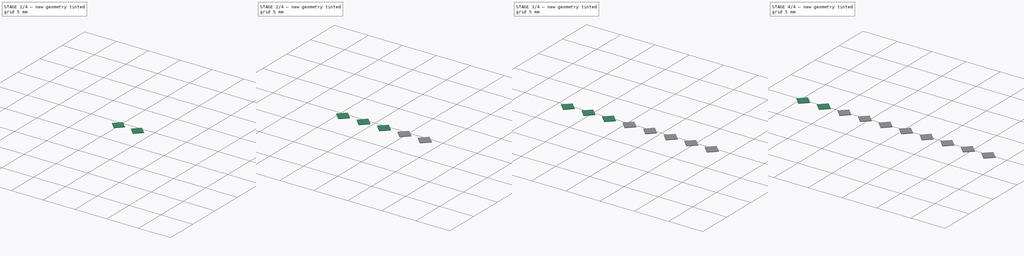
[diagram: build sequence overview — one tinted view per stage of 4, left to right]
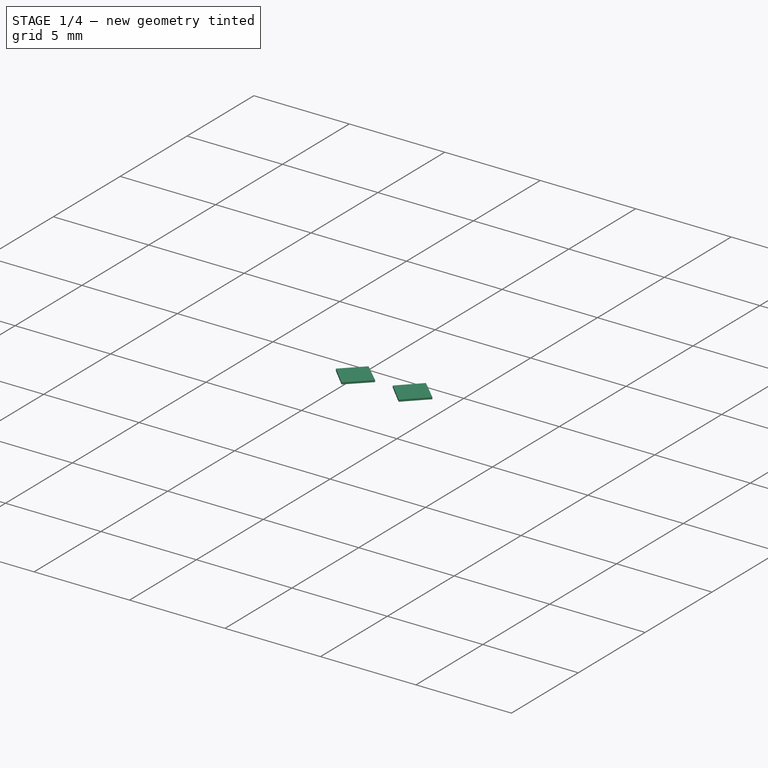
[diagram: stage 1 of 4 — iso view after this stage's code; geometry added in this stage tinted green]
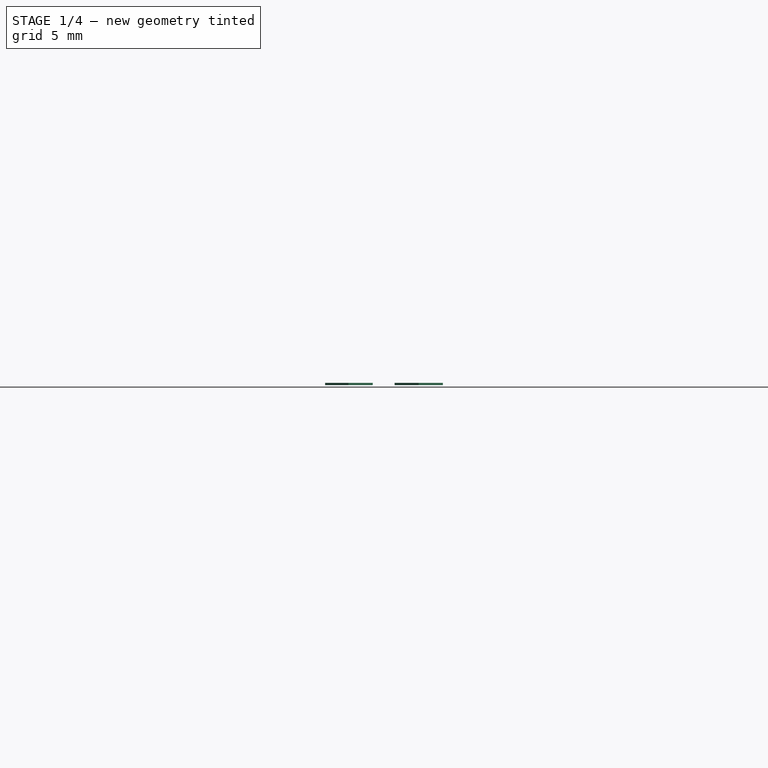
[diagram: stage 1 of 4 — front view after this stage's code; geometry added in this stage tinted green]
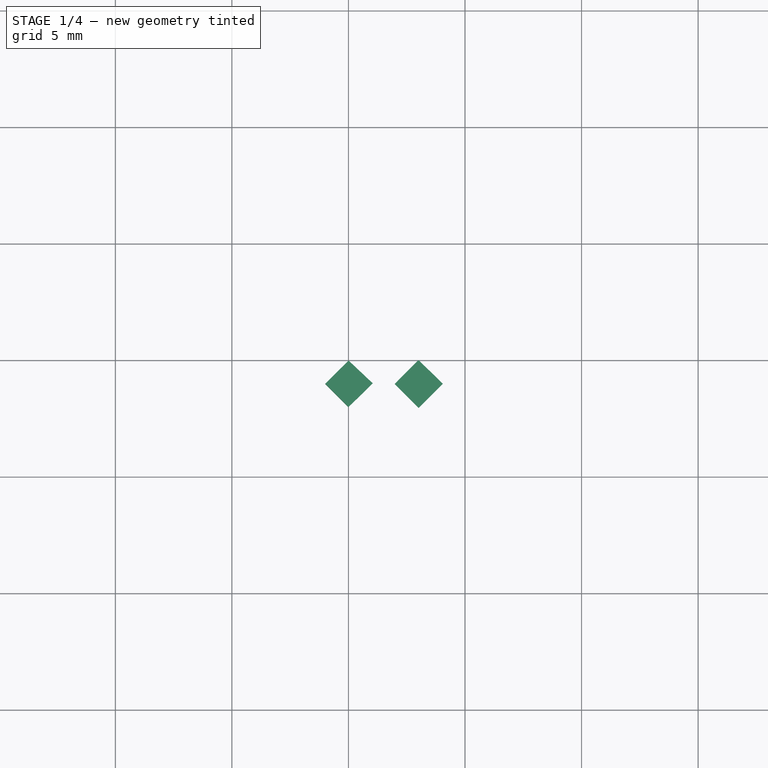
[diagram: stage 1 of 4 — top view after this stage's code; geometry added in this stage tinted green]
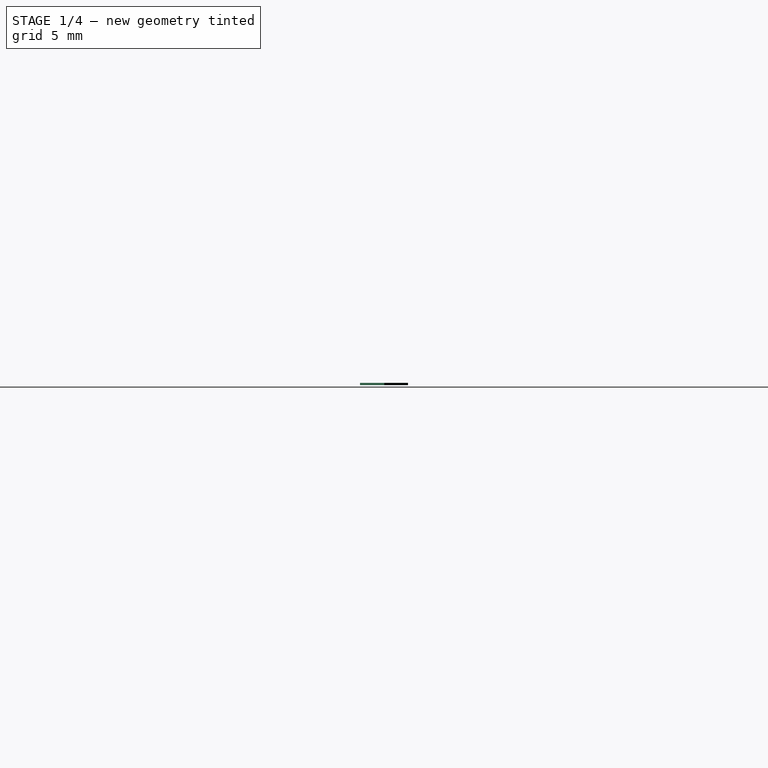
[diagram: stage 1 of 4 — right view after this stage's code; geometry added in this stage tinted green]
FCSTD DOCUMENT  (FreeCAD 0.20R29410 (Git))
Label: detail handle 2
License: All rights reserved
LicenseURL: http://en.wikipedia.org/wiki/All_rights_reserved
objects: Sketcher::SketchObject×10, PartDesign::Pad×10, PartDesign::Body×10
note: 40 computed .brp shape members not serialized (recipe doc carries the construction recipe); baked Part::Feature solids carry a one-line shape summary decoded from their .brp

FEATURE [PartDesign::Body] Body007
  Group = -> [Sketch007,Pad007]
  Origin = -> Origin007
  Tip = -> Pad007
FEATURE [Sketcher::SketchObject] Sketch008
  FullyConstrained = false
  MapMode = 5
  Support = -> [XY_Plane008]
  sketch-geometry (6):
    g0: LineSegment StartX=-51.4984 StartY=0 StartZ=0 EndX=-11.4984 EndY=0 EndZ=0
    g1: LineSegment StartX=-51.4984 StartY=5 StartZ=0 EndX=-51.4984 EndY=0 EndZ=0
    g2: LineSegment StartX=-26.0017 StartY=4.00173 StartZ=0 EndX=-24.9926 EndY=5.00079 EndZ=0
    g3: LineSegment StartX=-24.9926 StartY=5.00079 StartZ=0 EndX=-23.9569 EndY=4.02481 EndZ=0
    g4: LineSegment StartX=-23.9569 StartY=4.02481 StartZ=0 EndX=-25.0027 EndY=3.00267 EndZ=0
    g5: LineSegment StartX=-25.0027 StartY=3.00267 StartZ=0 EndX=-26.0017 EndY=4.00173 EndZ=0
  constraints (10):
    c: PointOnObject(g0,g-1)
    c: PointOnObject(g0,g-1)
    c: DistanceX(g0,g0) = 40
    c: Vertical(g1)
    c: DistanceY(g1,g1) = 5
    c: Coincident(g1,g0)
    c: Coincident(g2,g3)
    c: Coincident(g3,g4)
    c: Coincident(g4,g5)
    c: Coincident(g5,g2)
FEATURE [PartDesign::Pad] Pad008
  Direction = (0,0,1)
  Length = 0.1
  Length2 = 10
  Profile = -> Sketch008
  ReferenceAxis = -> Sketch008 [N_Axis]
  Refine = true
  Type = 0
FEATURE [PartDesign::Body] Body008
  Group = -> [Sketch008,Pad008]
  Origin = -> Origin008
  Tip = -> Pad008
FEATURE [Sketcher::SketchObject] Sketch009
  FullyConstrained = false
  MapMode = 5
  Support = -> [XY_Plane009]
  sketch-geometry (6):
    g0: LineSegment StartX=-51.4984 StartY=0 StartZ=0 EndX=-11.4984 EndY=0 EndZ=0
    g1: LineSegment StartX=-51.4984 StartY=5 StartZ=0 EndX=-51.4984 EndY=0 EndZ=0
    g2: LineSegment StartX=-23.0173 StartY=3.99637 StartZ=0 EndX=-21.998 EndY=5.02571 EndZ=0
    g3: LineSegment StartX=-21.998 StartY=5.02571 StartZ=0 EndX=-20.9485 EndY=4.00646 EndZ=0
    g4: LineSegment StartX=-20.9485 StartY=4.00646 StartZ=0 EndX=-21.9879 EndY=2.96704 EndZ=0
    g5: LineSegment StartX=-21.9879 StartY=2.96704 StartZ=0 EndX=-23.0173 EndY=3.99637 EndZ=0
  constraints (10):
    c: PointOnObject(g0,g-1)
    c: PointOnObject(g0,g-1)
    c: DistanceX(g0,g0) = 40
    c: Vertical(g1)
    c: DistanceY(g1,g1) = 5
    c: Coincident(g1,g0)
    c: Coincident(g2,g3)
    c: Coincident(g3,g4)
    c: Coincident(g4,g5)
    c: Coincident(g5,g2)
FEATURE [PartDesign::Pad] Pad009
  Direction = (0,0,1)
  Length = 0.1
  Length2 = 10
  Profile = -> Sketch009
  ReferenceAxis = -> Sketch009 [N_Axis]
  Refine = true
  Type = 0
FEATURE [PartDesign::Body] Body009
  Group = -> [Sketch009,Pad009]
  Origin = -> Origin009
  Tip = -> Pad009
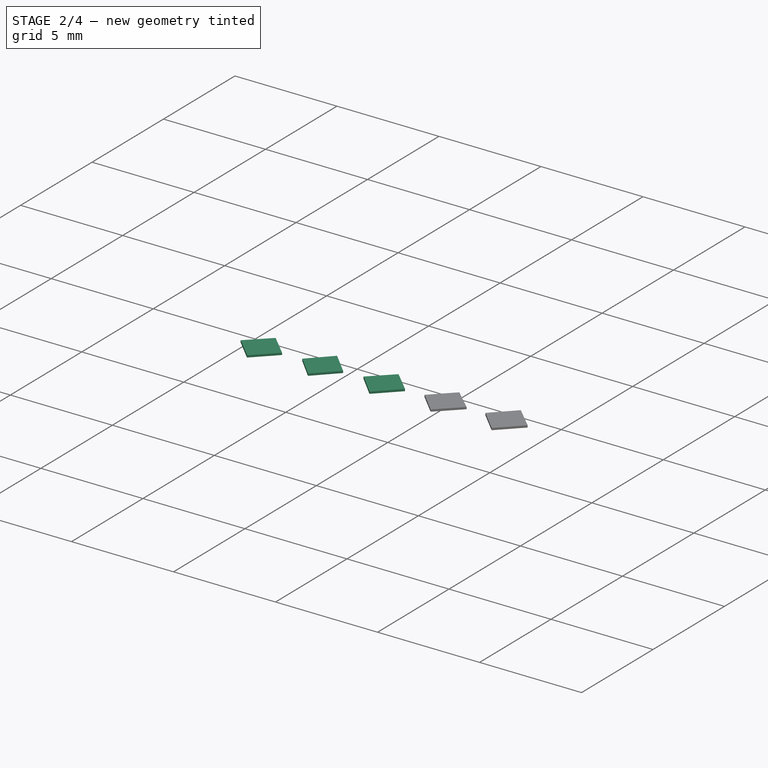
[diagram: stage 2 of 4 — iso view after this stage's code; geometry added in this stage tinted green]
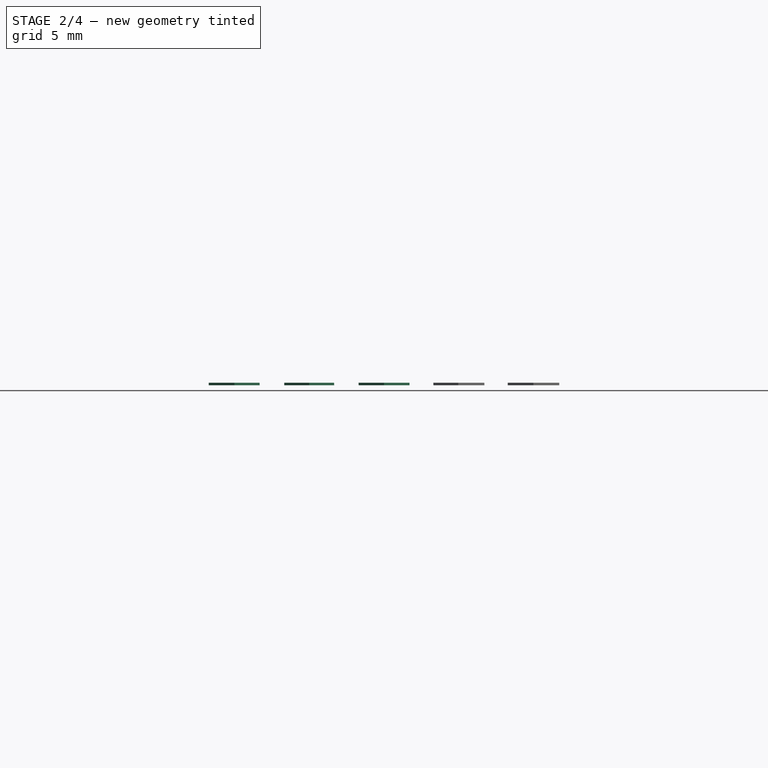
[diagram: stage 2 of 4 — front view after this stage's code; geometry added in this stage tinted green]
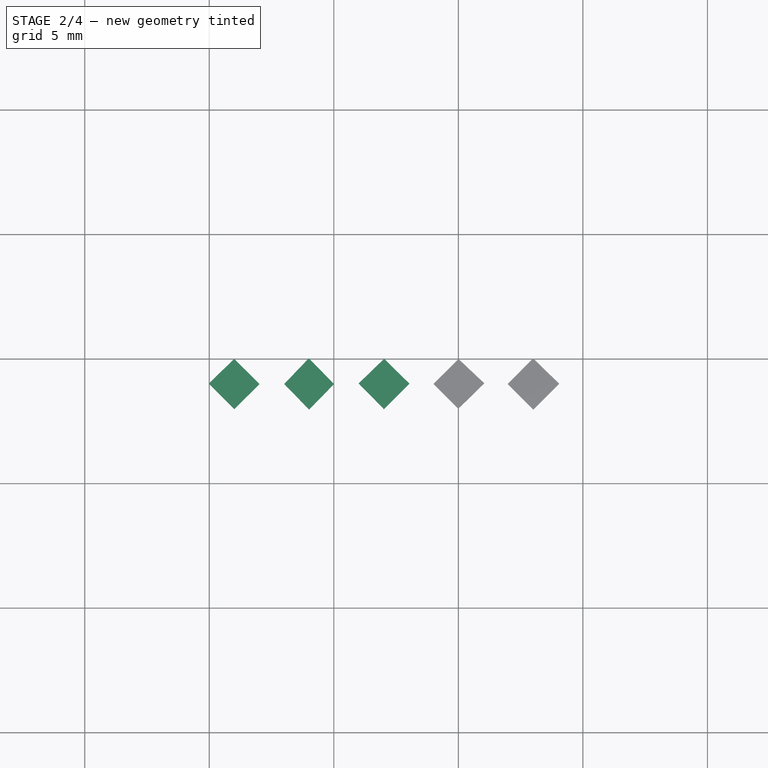
[diagram: stage 2 of 4 — top view after this stage's code; geometry added in this stage tinted green]
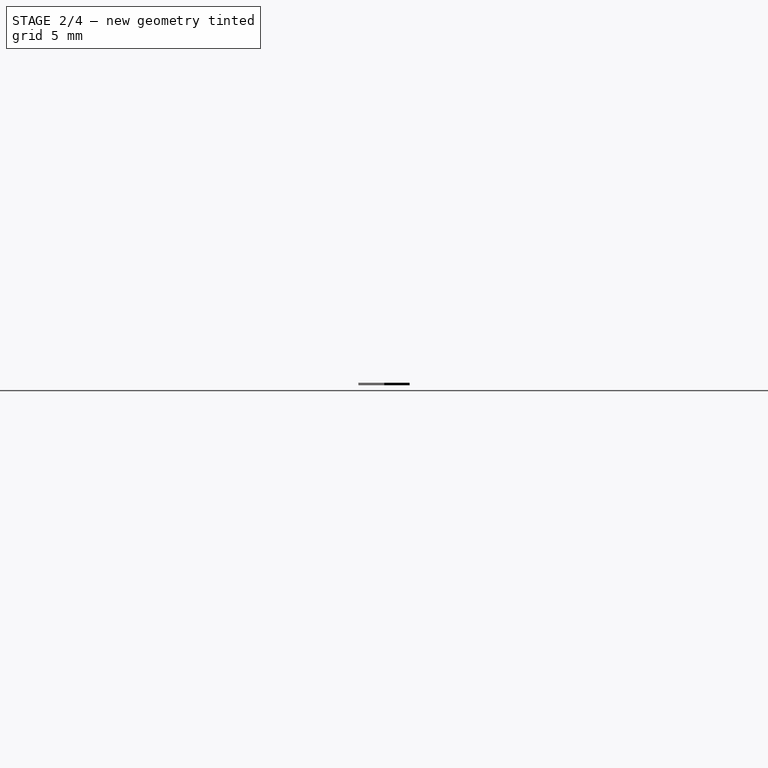
[diagram: stage 2 of 4 — right view after this stage's code; geometry added in this stage tinted green]
FEATURE [PartDesign::Body] Body004
  Group = -> [Sketch004,Pad004]
  Origin = -> Origin004
  Tip = -> Pad004
FEATURE [Sketcher::SketchObject] Sketch005
  FullyConstrained = false
  MapMode = 5
  Support = -> [XY_Plane005]
  sketch-geometry (6):
    g0: LineSegment StartX=-51.4984 StartY=0 StartZ=0 EndX=-11.4984 EndY=0 EndZ=0
    g1: LineSegment StartX=-51.4984 StartY=5 StartZ=0 EndX=-51.4984 EndY=0 EndZ=0
    g2: LineSegment StartX=-35.0215 StartY=4.01571 StartZ=0 EndX=-34.0001 EndY=5.00333 EndZ=0
    g3: LineSegment StartX=-34.0001 StartY=5.00333 StartZ=0 EndX=-32.9786 EndY=3.99542 EndZ=0
    g4: LineSegment StartX=-32.9786 StartY=3.99542 StartZ=0 EndX=-33.9933 EndY=2.9875 EndZ=0
    g5: LineSegment StartX=-33.9933 StartY=2.9875 StartZ=0 EndX=-35.0215 EndY=4.01571 EndZ=0
  constraints (10):
    c: PointOnObject(g0,g-1)
    c: PointOnObject(g0,g-1)
    c: DistanceX(g0,g0) = 40
    c: Vertical(g1)
    c: DistanceY(g1,g1) = 5
    c: Coincident(g1,g0)
    c: Coincident(g2,g3)
    c: Coincident(g3,g4)
    c: Coincident(g4,g5)
    c: Coincident(g5,g2)
FEATURE [PartDesign::Pad] Pad005
  Direction = (0,0,1)
  Length = 0.1
  Length2 = 10
  Profile = -> Sketch005
  ReferenceAxis = -> Sketch005 [N_Axis]
  Refine = true
  Type = 0
FEATURE [PartDesign::Body] Body005
  Group = -> [Sketch005,Pad005]
  Origin = -> Origin005
  Tip = -> Pad005
FEATURE [Sketcher::SketchObject] Sketch006
  FullyConstrained = false
  MapMode = 5
  Support = -> [XY_Plane006]
  sketch-geometry (6):
    g0: LineSegment StartX=-51.4984 StartY=0 StartZ=0 EndX=-11.4984 EndY=0 EndZ=0
    g1: LineSegment StartX=-51.4984 StartY=5 StartZ=0 EndX=-51.4984 EndY=0 EndZ=0
    g2: LineSegment StartX=-31.992 StartY=3.99794 StartZ=0 EndX=-31.0057 EndY=5.02886 EndZ=0
    g3: LineSegment StartX=-31.0057 StartY=5.02886 StartZ=0 EndX=-29.9897 EndY=3.99794 EndZ=0
    g4: LineSegment StartX=-29.9897 StartY=3.99794 StartZ=0 EndX=-30.9908 EndY=2.96972 EndZ=0
    g5: LineSegment StartX=-30.9908 StartY=2.96972 StartZ=0 EndX=-31.992 EndY=3.99794 EndZ=0
  constraints (10):
    c: PointOnObject(g0,g-1)
    c: PointOnObject(g0,g-1)
    c: DistanceX(g0,g0) = 40
    c: Vertical(g1)
    c: DistanceY(g1,g1) = 5
    c: Coincident(g1,g0)
    c: Coincident(g2,g3)
    c: Coincident(g3,g4)
    c: Coincident(g4,g5)
    c: Coincident(g5,g2)
FEATURE [PartDesign::Pad] Pad006
  Direction = (0,0,1)
  Length = 0.1
  Length2 = 10
  Profile = -> Sketch006
  ReferenceAxis = -> Sketch006 [N_Axis]
  Refine = true
  Type = 0
FEATURE [PartDesign::Body] Body006
  Group = -> [Sketch006,Pad006]
  Origin = -> Origin006
  Tip = -> Pad006
FEATURE [Sketcher::SketchObject] Sketch007
  FullyConstrained = false
  MapMode = 5
  Support = -> [XY_Plane007]
  sketch-geometry (6):
    g0: LineSegment StartX=-51.4984 StartY=0 StartZ=0 EndX=-11.4984 EndY=0 EndZ=0
    g1: LineSegment StartX=-51.4984 StartY=5 StartZ=0 EndX=-51.4984 EndY=0 EndZ=0
    g2: LineSegment StartX=-29.0035 StartY=4.01953 StartZ=0 EndX=-27.979 EndY=5.011 EndZ=0
    g3: LineSegment StartX=-27.979 StartY=5.011 StartZ=0 EndX=-26.9627 EndY=4.01127 EndZ=0
    g4: LineSegment StartX=-26.9627 StartY=4.01127 StartZ=0 EndX=-27.9873 EndY=2.98675 EndZ=0
    g5: LineSegment StartX=-27.9873 StartY=2.98675 StartZ=0 EndX=-29.0035 EndY=4.01953 EndZ=0
  constraints (10):
    c: PointOnObject(g0,g-1)
    c: PointOnObject(g0,g-1)
    c: DistanceX(g0,g0) = 40
    c: Vertical(g1)
    c: DistanceY(g1,g1) = 5
    c: Coincident(g1,g0)
    c: Coincident(g2,g3)
    c: Coincident(g3,g4)
    c: Coincident(g4,g5)
    c: Coincident(g5,g2)
FEATURE [PartDesign::Pad] Pad007
  Direction = (0,0,1)
  Length = 0.1
  Length2 = 10
  Profile = -> Sketch007
  ReferenceAxis = -> Sketch007 [N_Axis]
  Refine = true
  Type = 0
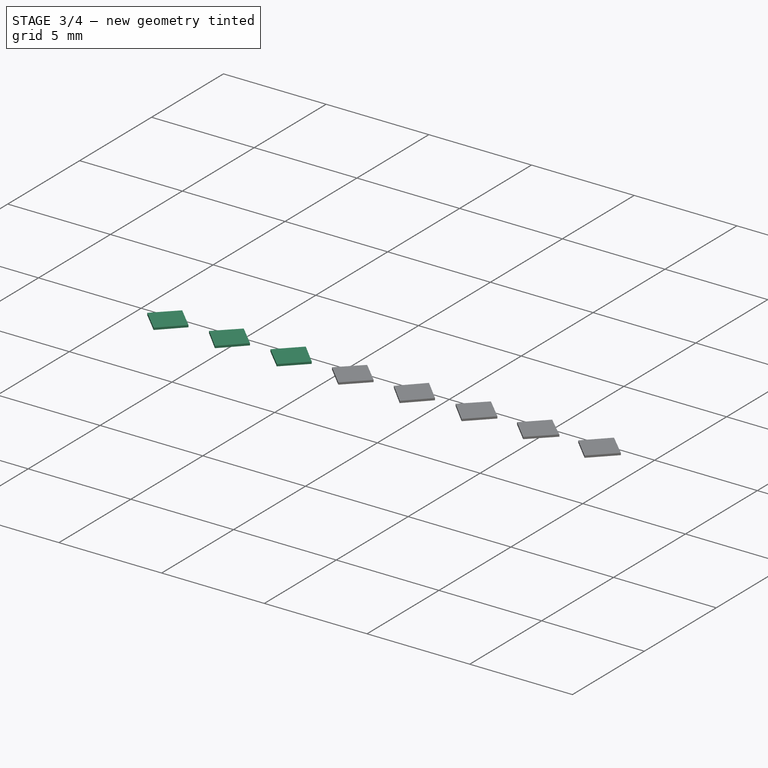
[diagram: stage 3 of 4 — iso view after this stage's code; geometry added in this stage tinted green]
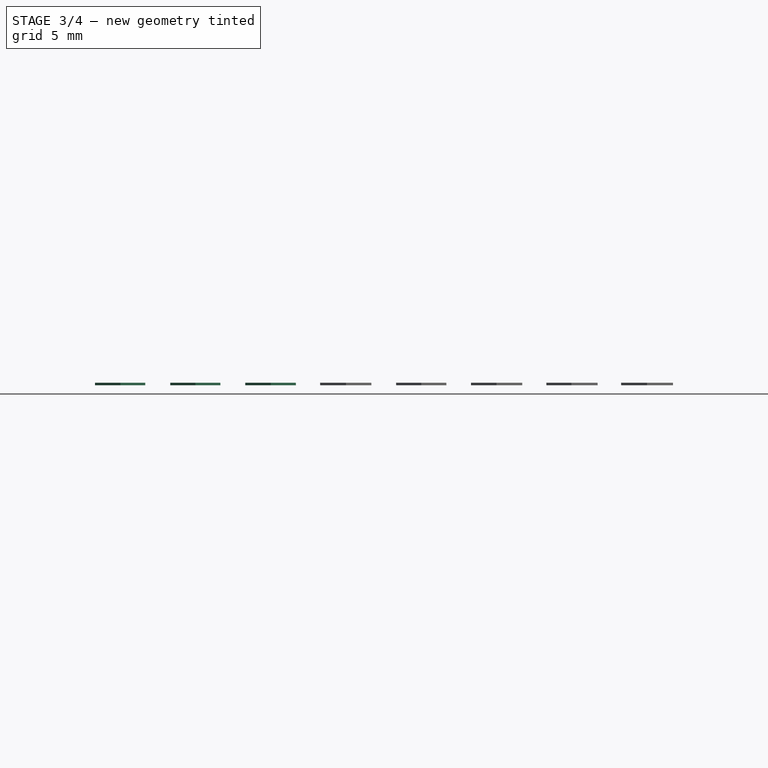
[diagram: stage 3 of 4 — front view after this stage's code; geometry added in this stage tinted green]
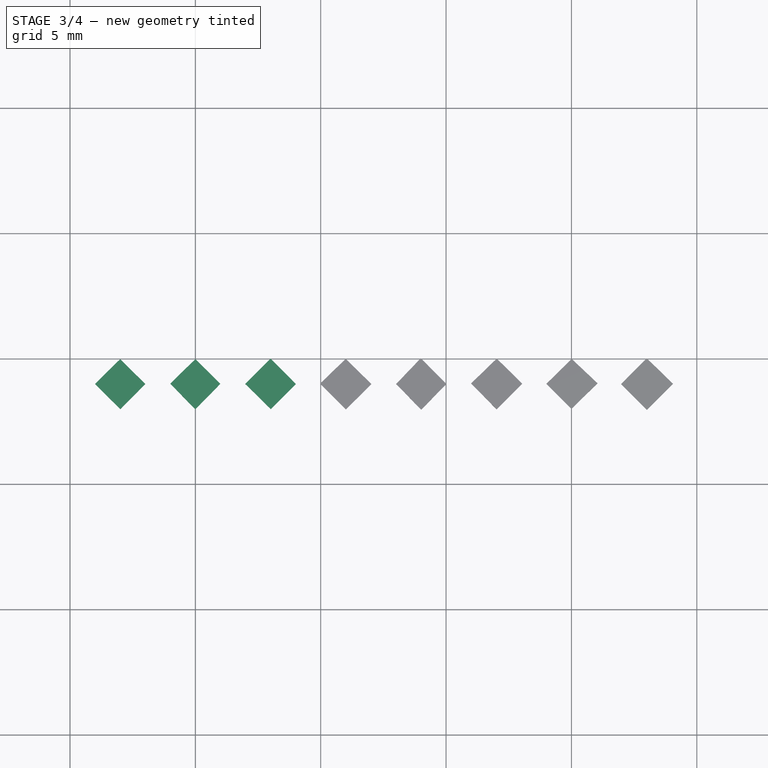
[diagram: stage 3 of 4 — top view after this stage's code; geometry added in this stage tinted green]
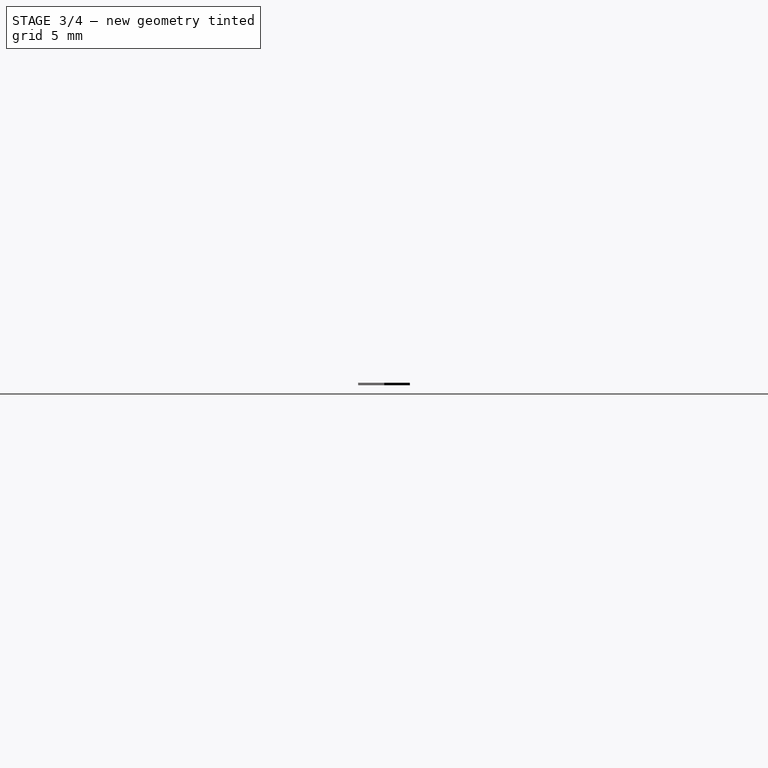
[diagram: stage 3 of 4 — right view after this stage's code; geometry added in this stage tinted green]
FEATURE [PartDesign::Body] Body001
  Group = -> [Sketch001,Pad001]
  Origin = -> Origin001
  Tip = -> Pad001
FEATURE [Sketcher::SketchObject] Sketch002
  FullyConstrained = false
  MapMode = 5
  Support = -> [XY_Plane002]
  sketch-geometry (6):
    g0: LineSegment StartX=-51.4984 StartY=0 StartZ=0 EndX=-11.4984 EndY=0 EndZ=0
    g1: LineSegment StartX=-51.4984 StartY=5 StartZ=0 EndX=-51.4984 EndY=0 EndZ=0
    g2: LineSegment StartX=-44.0031 StartY=3.99859 StartZ=0 EndX=-42.9965 EndY=4.99145 EndZ=0
    g3: LineSegment StartX=-42.9965 StartY=4.99145 StartZ=0 EndX=-41.997 EndY=3.99859 EndZ=0
    g4: LineSegment StartX=-41.997 StartY=3.99859 StartZ=0 EndX=-42.9879 EndY=2.99251 EndZ=0
    g5: LineSegment StartX=-42.9879 StartY=2.99251 StartZ=0 EndX=-44.0031 EndY=3.99859 EndZ=0
  constraints (10):
    c: PointOnObject(g0,g-1)
    c: PointOnObject(g0,g-1)
    c: DistanceX(g0,g0) = 40
    c: Vertical(g1)
    c: DistanceY(g1,g1) = 5
    c: Coincident(g1,g0)
    c: Coincident(g2,g3)
    c: Coincident(g3,g4)
    c: Coincident(g4,g5)
    c: Coincident(g5,g2)
FEATURE [PartDesign::Pad] Pad002
  Direction = (0,0,1)
  Length = 0.1
  Length2 = 10
  Profile = -> Sketch002
  ReferenceAxis = -> Sketch002 [N_Axis]
  Refine = true
  Type = 0
FEATURE [PartDesign::Body] Body002
  Group = -> [Sketch002,Pad002]
  Origin = -> Origin002
  Tip = -> Pad002
FEATURE [Sketcher::SketchObject] Sketch003
  FullyConstrained = false
  MapMode = 5
  Support = -> [XY_Plane003]
  sketch-geometry (6):
    g0: LineSegment StartX=-51.4984 StartY=0 StartZ=0 EndX=-11.4984 EndY=0 EndZ=0
    g1: LineSegment StartX=-51.4984 StartY=5 StartZ=0 EndX=-51.4984 EndY=0 EndZ=0
    g2: LineSegment StartX=-41.002 StartY=4.01061 StartZ=0 EndX=-39.9996 EndY=4.9909 EndZ=0
    g3: LineSegment StartX=-39.9996 StartY=4.9909 StartZ=0 EndX=-39.0027 EndY=4.00508 EndZ=0
    g4: LineSegment StartX=-39.0027 StartY=4.00508 StartZ=0 EndX=-39.9996 EndY=2.98602 EndZ=0
    g5: LineSegment StartX=-39.9996 StartY=2.98602 StartZ=0 EndX=-41.002 EndY=4.01061 EndZ=0
  constraints (10):
    c: PointOnObject(g0,g-1)
    c: PointOnObject(g0,g-1)
    c: DistanceX(g0,g0) = 40
    c: Vertical(g1)
    c: DistanceY(g1,g1) = 5
    c: Coincident(g1,g0)
    c: Coincident(g2,g3)
    c: Coincident(g3,g4)
    c: Coincident(g4,g5)
    c: Coincident(g5,g2)
FEATURE [PartDesign::Pad] Pad003
  Direction = (0,0,1)
  Length = 0.1
  Length2 = 10
  Profile = -> Sketch003
  ReferenceAxis = -> Sketch003 [N_Axis]
  Refine = true
  Type = 0
FEATURE [PartDesign::Body] Body003
  Group = -> [Sketch003,Pad003]
  Origin = -> Origin003
  Tip = -> Pad003
FEATURE [Sketcher::SketchObject] Sketch004
  FullyConstrained = false
  MapMode = 5
  Support = -> [XY_Plane004]
  sketch-geometry (6):
    g0: LineSegment StartX=-51.4984 StartY=0 StartZ=0 EndX=-11.4984 EndY=0 EndZ=0
    g1: LineSegment StartX=-51.4984 StartY=5 StartZ=0 EndX=-51.4984 EndY=0 EndZ=0
    g2: LineSegment StartX=-38.01 StartY=3.99895 StartZ=0 EndX=-36.9965 EndY=5.01246 EndZ=0
    g3: LineSegment StartX=-36.9965 StartY=5.01246 StartZ=0 EndX=-35.9885 EndY=3.99341 EndZ=0
    g4: LineSegment StartX=-35.9885 StartY=3.99341 StartZ=0 EndX=-36.991 EndY=2.9965 EndZ=0
    g5: LineSegment StartX=-36.991 StartY=2.9965 StartZ=0 EndX=-38.01 EndY=3.99895 EndZ=0
  constraints (10):
    c: PointOnObject(g0,g-1)
    c: PointOnObject(g0,g-1)
    c: DistanceX(g0,g0) = 40
    c: Vertical(g1)
    c: DistanceY(g1,g1) = 5
    c: Coincident(g1,g0)
    c: Coincident(g2,g3)
    c: Coincident(g3,g4)
    c: Coincident(g4,g5)
    c: Coincident(g5,g2)
FEATURE [PartDesign::Pad] Pad004
  Direction = (0,0,1)
  Length = 0.1
  Length2 = 10
  Profile = -> Sketch004
  ReferenceAxis = -> Sketch004 [N_Axis]
  Refine = true
  Type = 0
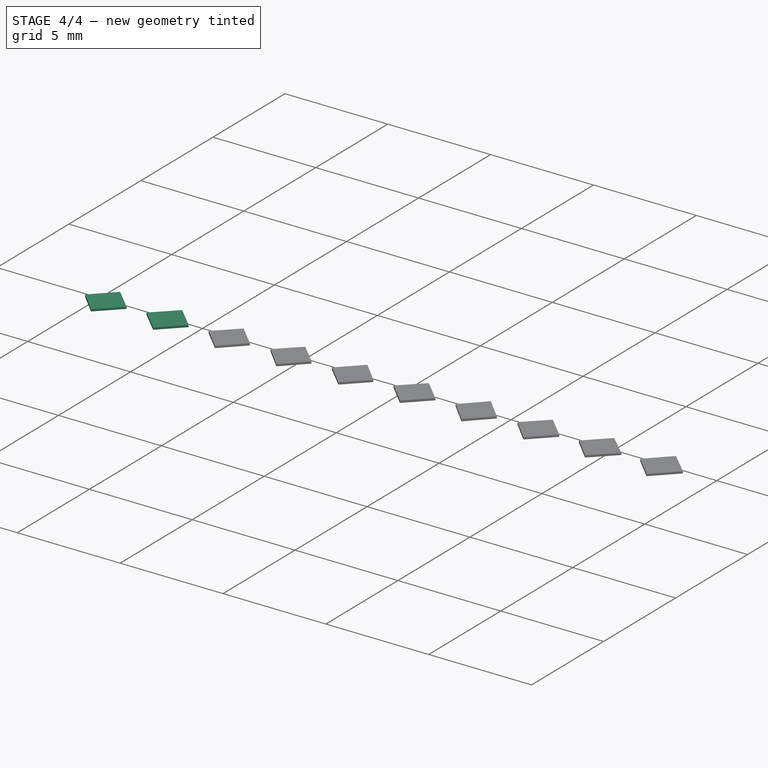
[diagram: stage 4 of 4 — iso view after this stage's code; geometry added in this stage tinted green]
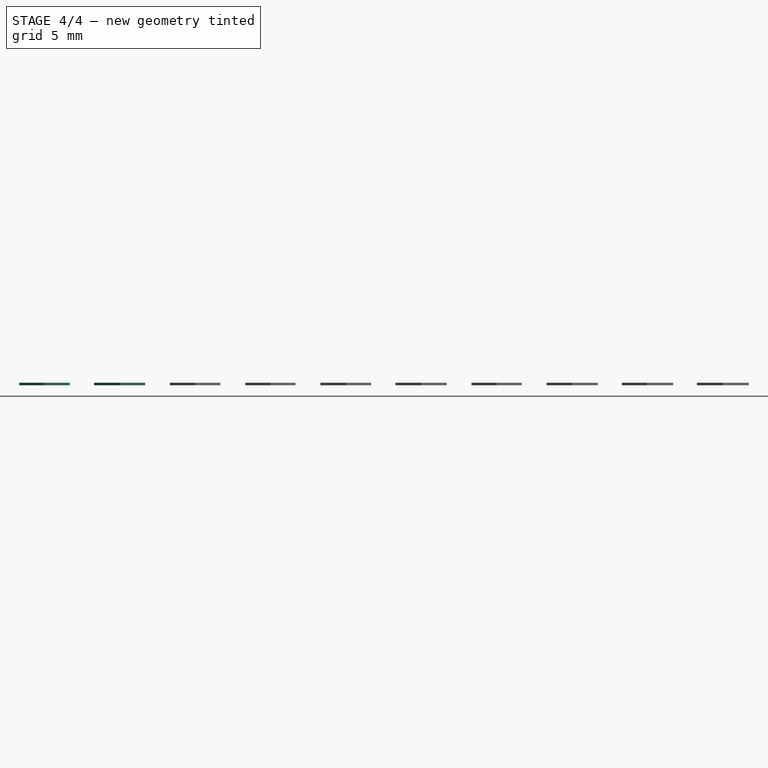
[diagram: stage 4 of 4 — front view after this stage's code; geometry added in this stage tinted green]
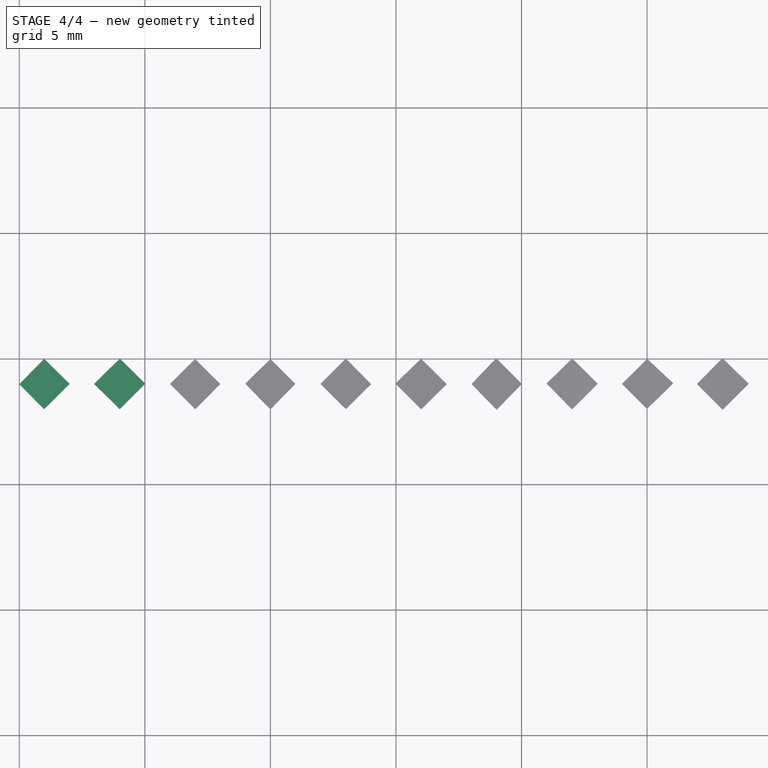
[diagram: stage 4 of 4 — top view after this stage's code; geometry added in this stage tinted green]
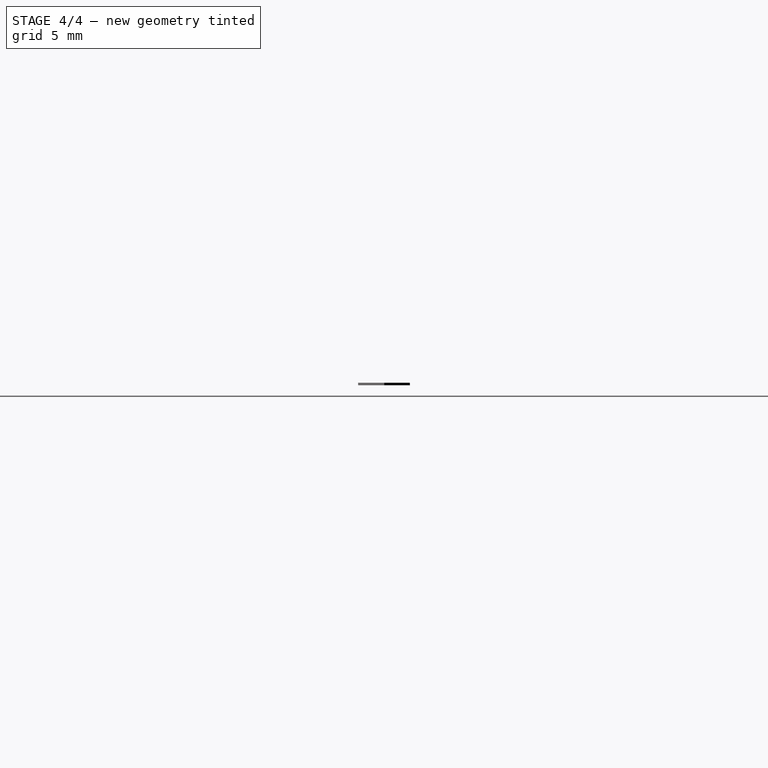
[diagram: stage 4 of 4 — right view after this stage's code; geometry added in this stage tinted green]
FEATURE [Sketcher::SketchObject] Sketch
  FullyConstrained = false
  MapMode = 5
  Support = -> [XY_Plane]
  sketch-geometry (6):
    g0: LineSegment StartX=-51.4984 StartY=0 StartZ=0 EndX=-11.4984 EndY=0 EndZ=0
    g1: LineSegment StartX=-51.4984 StartY=5 StartZ=0 EndX=-51.4984 EndY=0 EndZ=0
    g2: LineSegment StartX=-50.0033 StartY=3.9912 StartZ=0 EndX=-49.0051 EndY=4.99995 EndZ=0
    g3: LineSegment StartX=-49.0051 StartY=4.99995 StartZ=0 EndX=-47.9924 EndY=4.00126 EndZ=0
    g4: LineSegment StartX=-47.9924 StartY=4.00126 StartZ=0 EndX=-49.0132 EndY=2.99181 EndZ=0
    g5: LineSegment StartX=-49.0132 StartY=2.99181 StartZ=0 EndX=-50.0033 EndY=3.9912 EndZ=0
  constraints (10):
    c: PointOnObject(g0,g-1)
    c: PointOnObject(g0,g-1)
    c: DistanceX(g0,g0) = 40
    c: Vertical(g1)
    c: DistanceY(g1,g1) = 5
    c: Coincident(g1,g0)
    c: Coincident(g2,g3)
    c: Coincident(g3,g4)
    c: Coincident(g4,g5)
    c: Coincident(g5,g2)
FEATURE [PartDesign::Pad] Pad
  Direction = (0,0,1)
  Length = 0.1
  Length2 = 10
  Profile = -> Sketch
  ReferenceAxis = -> Sketch [N_Axis]
  Refine = true
  Type = 0
FEATURE [PartDesign::Body] Body
  Group = -> [Sketch,Pad]
  Origin = -> Origin
  Tip = -> Pad
FEATURE [Sketcher::SketchObject] Sketch001
  FullyConstrained = false
  MapMode = 5
  Support = -> [XY_Plane001]
  sketch-geometry (6):
    g0: LineSegment StartX=-51.4984 StartY=0 StartZ=0 EndX=-11.4984 EndY=0 EndZ=0
    g1: LineSegment StartX=-51.4984 StartY=5 StartZ=0 EndX=-51.4984 EndY=0 EndZ=0
    g2: LineSegment StartX=-47.0244 StartY=4.00239 StartZ=0 EndX=-45.9945 EndY=5.00997 EndZ=0
    g3: LineSegment StartX=-45.9945 StartY=5.00997 StartZ=0 EndX=-44.9828 EndY=4.00995 EndZ=0
    g4: LineSegment StartX=-44.9828 StartY=4.00995 StartZ=0 EndX=-45.9963 EndY=2.99548 EndZ=0
    g5: LineSegment StartX=-45.9963 StartY=2.99548 StartZ=0 EndX=-47.0244 EndY=4.00239 EndZ=0
  constraints (10):
    c: PointOnObject(g0,g-1)
    c: PointOnObject(g0,g-1)
    c: DistanceX(g0,g0) = 40
    c: Vertical(g1)
    c: DistanceY(g1,g1) = 5
    c: Coincident(g1,g0)
    c: Coincident(g2,g3)
    c: Coincident(g3,g4)
    c: Coincident(g4,g5)
    c: Coincident(g5,g2)
FEATURE [PartDesign::Pad] Pad001
  Direction = (0,0,1)
  Length = 0.1
  Length2 = 10
  Profile = -> Sketch001
  ReferenceAxis = -> Sketch001 [N_Axis]
  Refine = true
  Type = 0
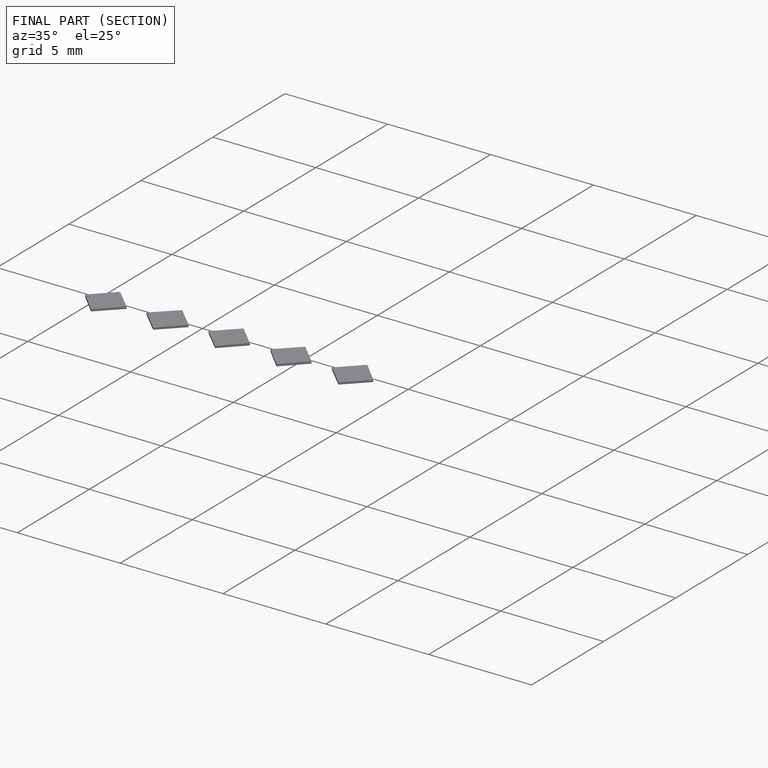
[diagram: finished part — half-section view (interior)]
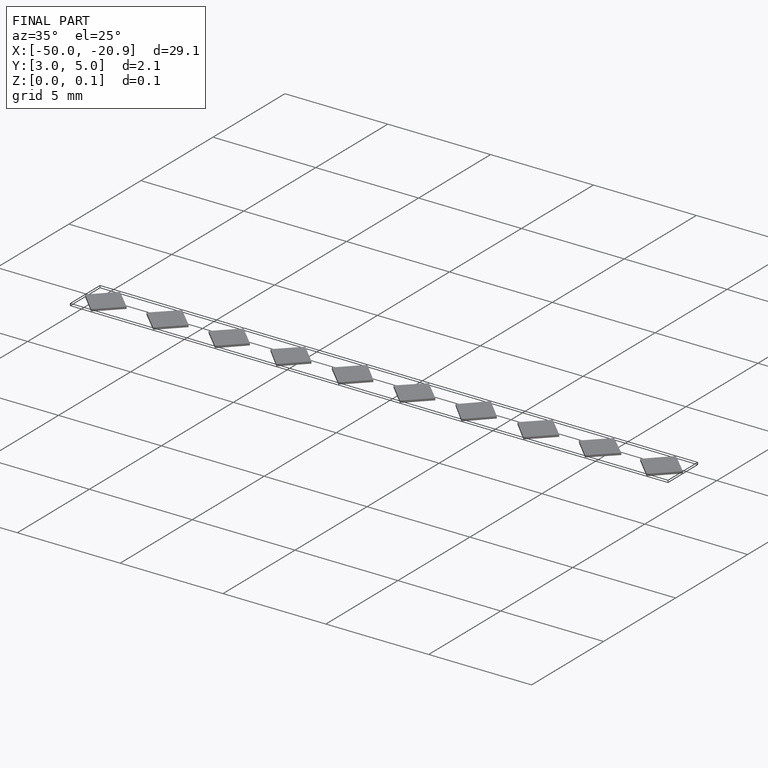
[diagram: finished part — iso view with bounding-box wireframe]
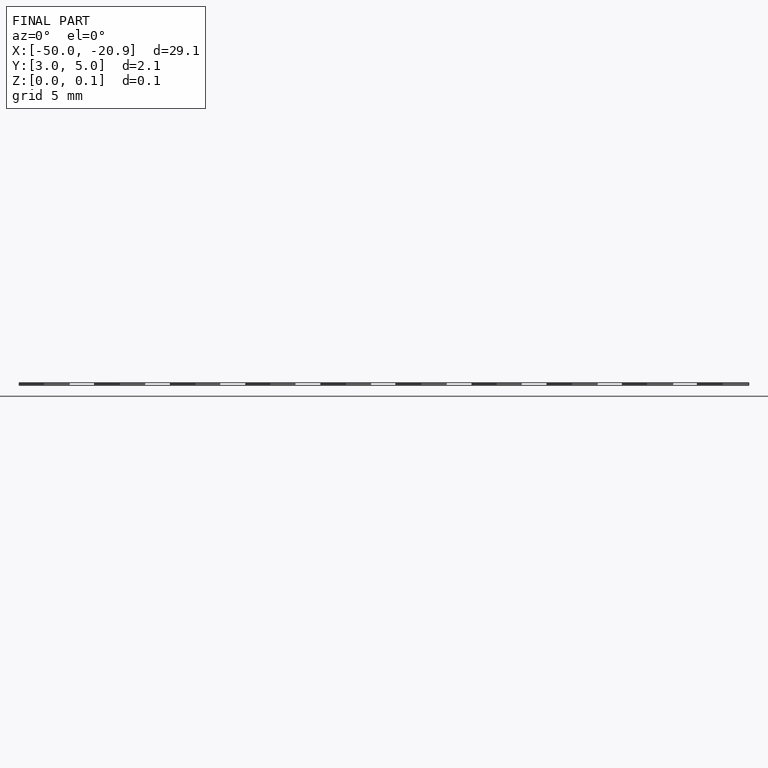
[diagram: finished part — front view with bounding-box wireframe]
